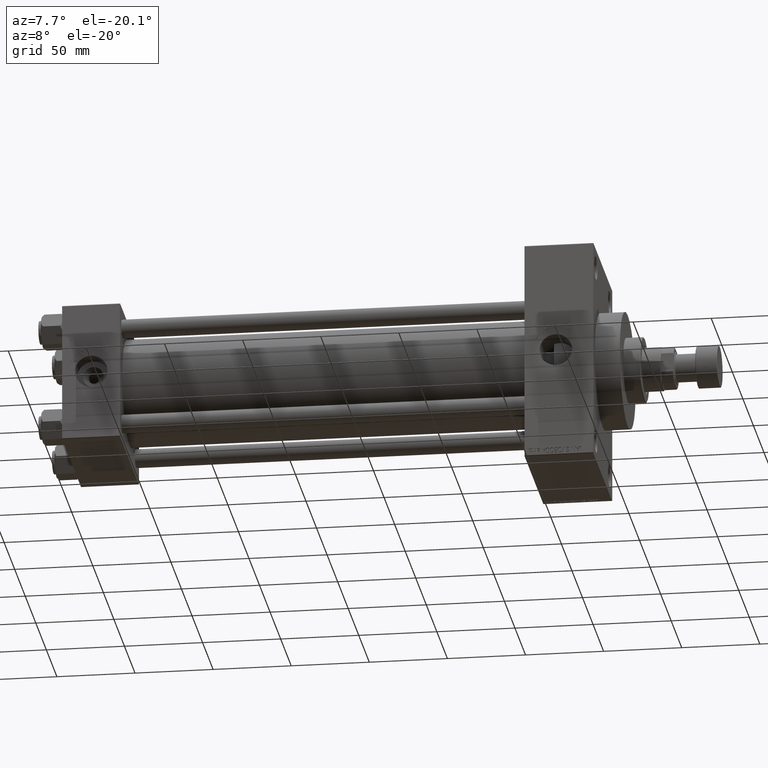
[diagram: clean part render]
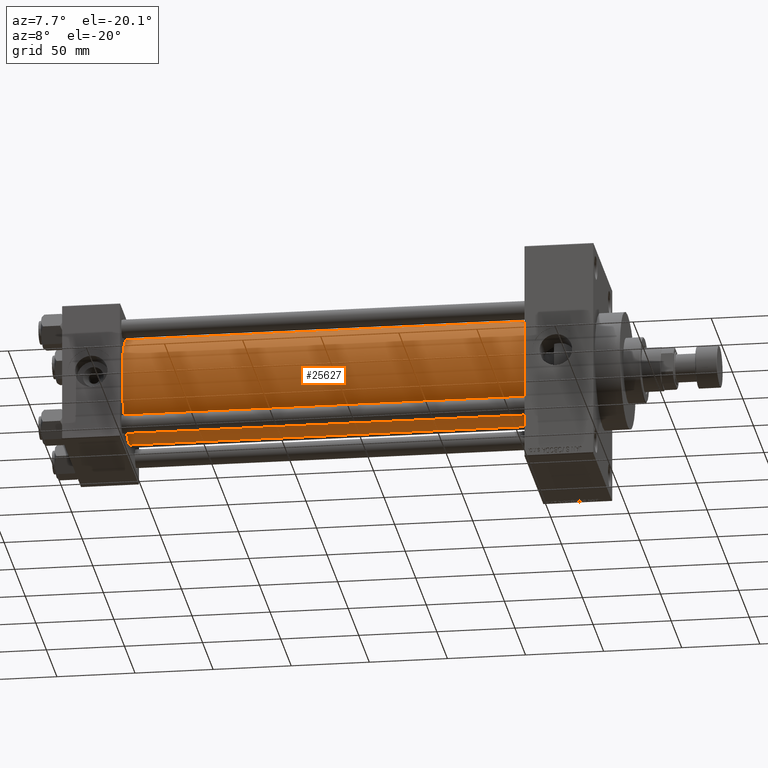
[diagram: same view with one face highlighted and labeled with its STEP entity id]
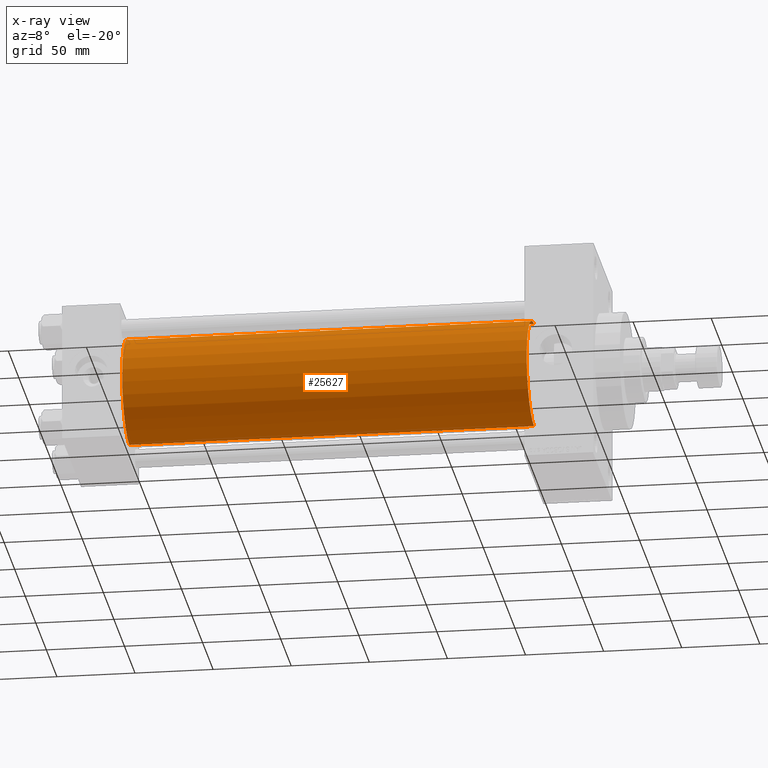
[diagram: x-ray of the same camera — body ghosted, the highlighted face saturated]
A machine part, auxiliary view. The second image highlights one B-rep face of the part: STEP entity #25627.
The next image is the same camera in x-ray: the body ghosted, the highlighted face saturated — about 0% of this face is hidden behind the body in this view.
In plain terms, the highlighted cylindrical surface (partial cylindrical patch) has radius 34.5 mm, axis along (-1, -0, -0).
Its self-contained STEP definition (entity closure, byte-faithful):
#2337 = DIRECTION ( 'NONE',  ( 0.000000000000000000, 0.000000000000000000, -1.000000000000000000 ) ) ;
#3610 = DIRECTION ( 'NONE',  ( 1.000000000000000000, -0.000000000000000000, 0.000000000000000000 ) ) ;
#3752 = CARTESIAN_POINT ( 'NONE',  ( 296.0000000000000000, -2.602085213965210642E-15, 0.000000000000000000 ) ) ;
#3900 = VERTEX_POINT ( 'NONE', #21566 ) ;
#5601 = ORIENTED_EDGE ( 'NONE', *, *, #41939, .T. ) ;
#6810 = DIRECTION ( 'NONE',  ( -1.000000000000000000, -0.000000000000000000, -0.000000000000000000 ) ) ;
#7814 = VECTOR ( 'NONE', #19599, 1000.000000000000000 ) ;
#7983 = CARTESIAN_POINT ( 'NONE',  ( 36.99999999999997868, 1.622946243093158675E-15, -34.50000000000000000 ) ) ;
#12059 = CARTESIAN_POINT ( 'NONE',  ( 296.0000000000000000, -2.602085213965210642E-15, 0.000000000000000000 ) ) ;
#12126 = CARTESIAN_POINT ( 'NONE',  ( 296.0000000000000000, 1.622946243093158675E-15, -34.50000000000000000 ) ) ;
#12833 = EDGE_CURVE ( 'NONE', #3900, #49285, #49396, .T. ) ;
#14009 = CARTESIAN_POINT ( 'NONE',  ( 296.0000000000000000, 1.622946243093158675E-15, -34.50000000000000000 ) ) ;
#15007 = DIRECTION ( 'NONE',  ( 1.000000000000000000, 0.000000000000000000, 0.000000000000000000 ) ) ;
#15801 = FACE_OUTER_BOUND ( 'NONE', #18487, .T. ) ;
#15804 = VECTOR ( 'NONE', #6810, 1000.000000000000000 ) ;
#17770 = VERTEX_POINT ( 'NONE', #32040 ) ;
#18487 = EDGE_LOOP ( 'NONE', ( #35971, #27370, #5601, #42801 ) ) ;
#18846 = DIRECTION ( 'NONE',  ( 0.000000000000000000, 0.000000000000000000, 1.000000000000000000 ) ) ;
#19599 = DIRECTION ( 'NONE',  ( -1.000000000000000000, -0.000000000000000000, -0.000000000000000000 ) ) ;
#21566 = CARTESIAN_POINT ( 'NONE',  ( 36.99999999999997868, -2.602085213965210642E-15, 34.50000000000000000 ) ) ;
#22592 = CARTESIAN_POINT ( 'NONE',  ( 36.99999999999997868, -2.602085213965210642E-15, 0.000000000000000000 ) ) ;
#22920 = AXIS2_PLACEMENT_3D ( 'NONE', #3752, #15007, #2337 ) ;
#23039 = DIRECTION ( 'NONE',  ( -1.000000000000000000, -0.000000000000000000, -0.000000000000000000 ) ) ;
#25300 = LINE ( 'NONE', #29795, #15804 ) ;
#25627 = ADVANCED_FACE ( 'NONE', ( #15801 ), #46522, .T. ) ;
#27370 = ORIENTED_EDGE ( 'NONE', *, *, #40927, .F. ) ;
#29795 = CARTESIAN_POINT ( 'NONE',  ( 296.0000000000000000, -2.602085213965210642E-15, 34.50000000000000000 ) ) ;
#31346 = LINE ( 'NONE', #12126, #7814 ) ;
#32040 = CARTESIAN_POINT ( 'NONE',  ( 296.0000000000000000, -2.602085213965210642E-15, 34.50000000000000000 ) ) ;
#33432 = AXIS2_PLACEMENT_3D ( 'NONE', #22592, #3610, #18846 ) ;
#34542 = DIRECTION ( 'NONE',  ( 0.000000000000000000, 0.000000000000000000, 1.000000000000000000 ) ) ;
#35971 = ORIENTED_EDGE ( 'NONE', *, *, #41631, .F. ) ;
#36818 = VERTEX_POINT ( 'NONE', #14009 ) ;
#40927 = EDGE_CURVE ( 'NONE', #17770, #36818, #42080, .T. ) ;
#41631 = EDGE_CURVE ( 'NONE', #36818, #49285, #31346, .T. ) ;
#41939 = EDGE_CURVE ( 'NONE', #17770, #3900, #25300, .T. ) ;
#42080 = CIRCLE ( 'NONE', #22920, 34.50000000000000000 ) ;
#42801 = ORIENTED_EDGE ( 'NONE', *, *, #12833, .T. ) ;
#44941 = AXIS2_PLACEMENT_3D ( 'NONE', #12059, #23039, #34542 ) ;
#46522 = CYLINDRICAL_SURFACE ( 'NONE', #44941, 34.50000000000000000 ) ;
#49285 = VERTEX_POINT ( 'NONE', #7983 ) ;
#49396 = CIRCLE ( 'NONE', #33432, 34.50000000000000000 ) ;